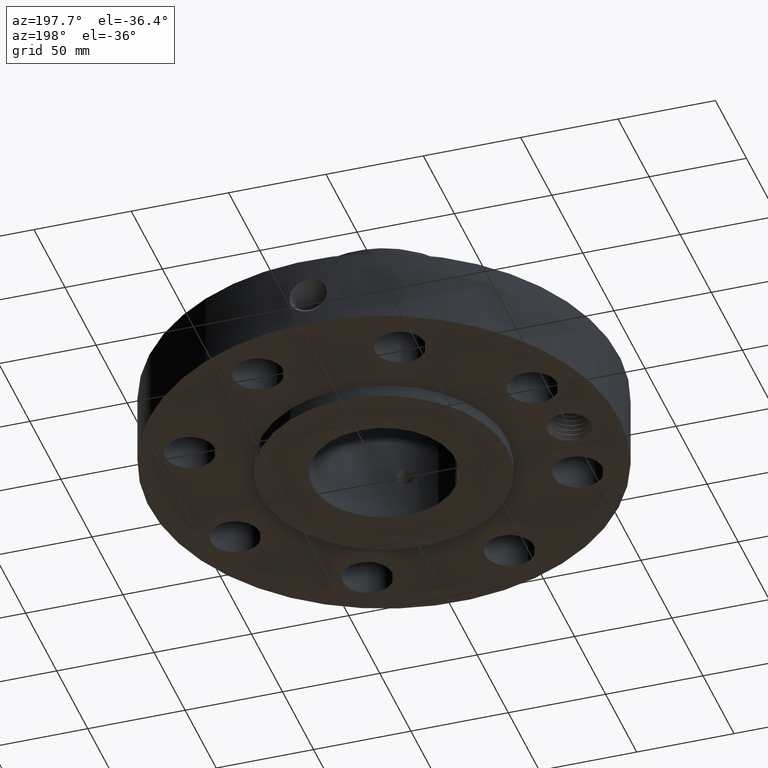
[diagram: clean part render]
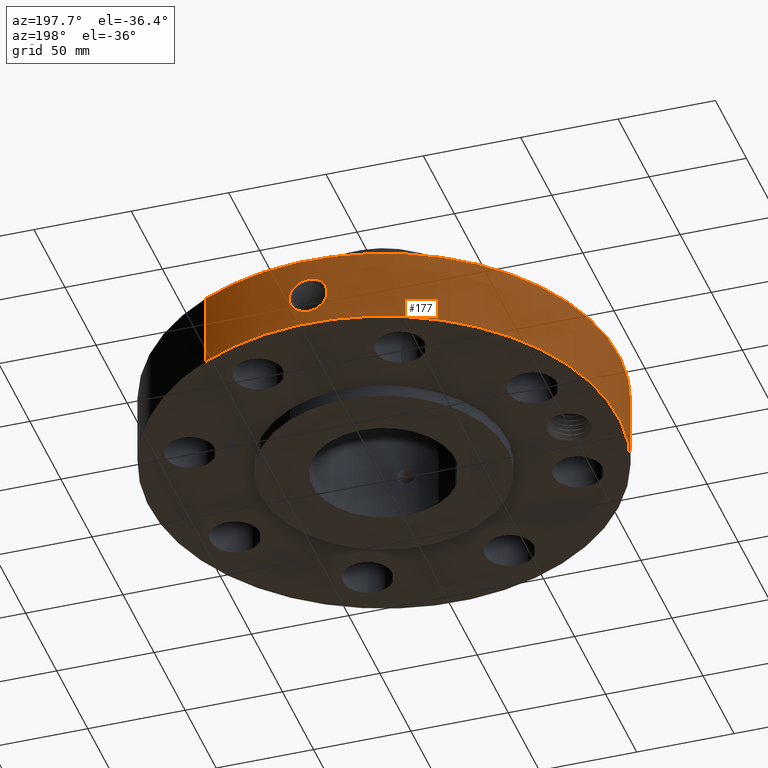
[diagram: same view with one face highlighted and labeled with its STEP entity id]
A machine part, auxiliary view. The second image highlights one B-rep face of the part: STEP entity #177.
In plain terms, the highlighted cylindrical surface (partial cylindrical patch) has radius 120.65 mm, axis along (0, 0, -1).
Its self-contained STEP definition (entity closure, byte-faithful):
#38=AXIS2_PLACEMENT_3D('Cylinder Axis2P3D',#35,#36,#37) ;
#42=AXIS2_PLACEMENT_3D('Circle Axis2P3D',#40,#41,$) ;
#58=AXIS2_PLACEMENT_3D('Circle Axis2P3D',#56,#57,$) ;
#35=CARTESIAN_POINT('Axis2P3D Location',(0.,0.,2.12500000001)) ;
#40=CARTESIAN_POINT('Axis2P3D Location',(0.,0.,0.250000000001)) ;
#44=CARTESIAN_POINT('Vertex',(-2.27727130838,-4.168517169,0.250000000001)) ;
#46=CARTESIAN_POINT('Vertex',(2.27727130838,4.168517169,0.250000000001)) ;
#49=CARTESIAN_POINT('Line Origine',(-2.27727130838,-4.168517169,1.)) ;
#53=CARTESIAN_POINT('Vertex',(-2.27727130838,-4.168517169,1.75000000001)) ;
#56=CARTESIAN_POINT('Axis2P3D Location',(0.,0.,1.75000000001)) ;
#60=CARTESIAN_POINT('Vertex',(2.27727130838,4.168517169,1.75000000001)) ;
#63=CARTESIAN_POINT('Line Origine',(2.27727130838,4.168517169,1.)) ;
#75=CARTESIAN_POINT('Control Point',(-0.0664443336882,4.74953525629,1.28781472966)) ;
#76=CARTESIAN_POINT('Control Point',(-0.0447973834791,4.74983808953,1.29195972283)) ;
#77=CARTESIAN_POINT('Control Point',(-0.0227596203804,4.74999661825,1.29407372225)) ;
#78=CARTESIAN_POINT('Control Point',(-0.000717080986339,4.74999994589,1.29411849685)) ;
#79=CARTESIAN_POINT('Vertex',(-0.0664188696294,4.74953588304,1.28781991618)) ;
#81=CARTESIAN_POINT('Vertex',(-0.000716859021627,4.74999994592,1.29411850704)) ;
#85=CARTESIAN_POINT('Control Point',(-0.0664187407928,4.74953561425,1.28781927448)) ;
#86=CARTESIAN_POINT('Control Point',(-0.102753721001,4.74902749644,1.28201870457)) ;
#87=CARTESIAN_POINT('Control Point',(-0.138115211601,4.74810201592,1.26977317773)) ;
#88=CARTESIAN_POINT('Control Point',(-0.170475904125,4.74693985282,1.25208714514)) ;
#89=CARTESIAN_POINT('Vertex',(-0.170475904125,4.74693985282,1.25208714514)) ;
#93=CARTESIAN_POINT('Control Point',(-0.0289717654606,4.74991164518,0.53104117424)) ;
#94=CARTESIAN_POINT('Control Point',(-0.0747966531428,4.74963213937,0.536930034353)) ;
#95=CARTESIAN_POINT('Control Point',(-0.119477769901,4.74880696846,0.550185753379)) ;
#96=CARTESIAN_POINT('Control Point',(-0.161312068973,4.74750063069,0.570440242412)) ;
#97=CARTESIAN_POINT('Control Point',(-0.245546224565,4.74402236715,0.628559076299)) ;
#98=CARTESIAN_POINT('Control Point',(-0.306057140322,4.74027319235,0.70960776439)) ;
#99=CARTESIAN_POINT('Control Point',(-0.330993871937,4.73849840088,0.759101526863)) ;
#100=CARTESIAN_POINT('Control Point',(-0.35845056759,4.73646747946,0.847415945733)) ;
#101=CARTESIAN_POINT('Control Point',(-0.360779964708,4.73627580375,0.938205105114)) ;
#102=CARTESIAN_POINT('Control Point',(-0.35751579808,4.73652939594,0.975158290126)) ;
#103=CARTESIAN_POINT('Control Point',(-0.339028118465,4.73793770505,1.06509307514)) ;
#104=CARTESIAN_POINT('Control Point',(-0.295443998867,4.74092283743,1.14643073314)) ;
#105=CARTESIAN_POINT('Control Point',(-0.260804026794,4.74309248769,1.19000963135)) ;
#106=CARTESIAN_POINT('Control Point',(-0.218315242628,4.7452218082,1.22594159398)) ;
#107=CARTESIAN_POINT('Control Point',(-0.170475904125,4.74693985282,1.25208714514)) ;
#108=CARTESIAN_POINT('Vertex',(-0.0289717654606,4.74991164518,0.53104117424)) ;
#112=CARTESIAN_POINT('Control Point',(-0.0289717654606,4.74991164518,0.53104117424)) ;
#113=CARTESIAN_POINT('Control Point',(-0.0193073849474,4.74997059241,0.530854119281)) ;
#114=CARTESIAN_POINT('Control Point',(-0.00964169540521,4.75000000556,0.530965378902)) ;
#115=CARTESIAN_POINT('Control Point',(2.72878353977E-006,4.75000000002,0.531374667805)) ;
#116=CARTESIAN_POINT('Vertex',(2.72878353782E-006,4.75000000002,0.531374667805)) ;
#120=CARTESIAN_POINT('Control Point',(0.194608877525,4.7460117346,0.583778592451)) ;
#121=CARTESIAN_POINT('Control Point',(0.134839366285,4.74846256661,0.552003246565)) ;
#122=CARTESIAN_POINT('Control Point',(0.0678388662237,4.74999996105,0.534253489827)) ;
#123=CARTESIAN_POINT('Control Point',(2.72878353977E-006,4.75000000002,0.531374667805)) ;
#124=CARTESIAN_POINT('Vertex',(0.194608877525,4.7460117346,0.583778592451)) ;
#128=CARTESIAN_POINT('Control Point',(0.332827639994,4.73832520647,0.701219893118)) ;
#129=CARTESIAN_POINT('Control Point',(0.305364932817,4.74025423152,0.664558567279)) ;
#130=CARTESIAN_POINT('Control Point',(0.272251915485,4.74236913954,0.632218481093)) ;
#131=CARTESIAN_POINT('Control Point',(0.234901661666,4.74435954031,0.605199499463)) ;
#132=CARTESIAN_POINT('Control Point',(0.194608877525,4.7460117346,0.583778592451)) ;
#133=CARTESIAN_POINT('Vertex',(0.332827639994,4.73832520647,0.701219893118)) ;
#137=CARTESIAN_POINT('Control Point',(0.332827639994,4.73832520647,0.701219893118)) ;
#138=CARTESIAN_POINT('Control Point',(0.362191423096,4.73626264676,0.744057421667)) ;
#139=CARTESIAN_POINT('Control Point',(0.384606624186,4.73444241076,0.791551724289)) ;
#140=CARTESIAN_POINT('Control Point',(0.399485379708,4.73317703047,0.841804248168)) ;
#141=CARTESIAN_POINT('Control Point',(0.406764031121,4.73255142848,0.893249885444)) ;
#142=CARTESIAN_POINT('Vertex',(0.406764031121,4.73255142848,0.893249885444)) ;
#146=CARTESIAN_POINT('Control Point',(0.406764031121,4.73255142848,0.893249885444)) ;
#147=CARTESIAN_POINT('Control Point',(0.410937043431,4.73219275698,0.943590828611)) ;
#148=CARTESIAN_POINT('Control Point',(0.406199449956,4.73259532086,0.994560330824)) ;
#149=CARTESIAN_POINT('Control Point',(0.392245340188,4.73383204363,1.04389645054)) ;
#150=CARTESIAN_POINT('Control Point',(0.356408433093,4.73676757046,1.11810453389)) ;
#151=CARTESIAN_POINT('Control Point',(0.303355472262,4.74037517985,1.17883123609)) ;
#152=CARTESIAN_POINT('Control Point',(0.280572013148,4.74179821439,1.20005457041)) ;
#153=CARTESIAN_POINT('Control Point',(0.216669478448,4.74536023062,1.24871840008)) ;
#154=CARTESIAN_POINT('Control Point',(0.143130760669,4.7481822494,1.27972813256)) ;
#155=CARTESIAN_POINT('Control Point',(0.0957567995274,4.74940386749,1.29169900669)) ;
#156=CARTESIAN_POINT('Control Point',(0.0475901556869,4.75000025916,1.29648726642)) ;
#157=CARTESIAN_POINT('Control Point',(-2.58579355241E-005,4.74999999995,1.29415298437)) ;
#158=CARTESIAN_POINT('Vertex',(-2.5857935516E-005,4.74999999995,1.29415298437)) ;
#162=CARTESIAN_POINT('Control Point',(-0.000716859009901,4.74999994592,1.29411850702)) ;
#163=CARTESIAN_POINT('Control Point',(-0.000371381626736,4.74999999807,1.29413604576)) ;
#164=CARTESIAN_POINT('Control Point',(-2.58579432267E-005,4.74999999995,1.29415298437)) ;
#36=DIRECTION('Axis2P3D Direction',(0.,0.,-0.0393700787402)) ;
#37=DIRECTION('Axis2P3D XDirection',(0.0188750212049,0.0345504945626,0.)) ;
#41=DIRECTION('Axis2P3D Direction',(0.,0.,-0.0393700787402)) ;
#50=DIRECTION('Vector Direction',(0.,0.,-0.0393700787402)) ;
#57=DIRECTION('Axis2P3D Direction',(0.,0.,-0.0393700787402)) ;
#64=DIRECTION('Vector Direction',(0.,0.,-0.0393700787402)) ;
#51=VECTOR('Line Direction',#50,0.0393700787402) ;
#65=VECTOR('Line Direction',#64,0.0393700787402) ;
#69=ORIENTED_EDGE('',*,*,#48,.F.) ;
#70=ORIENTED_EDGE('',*,*,#55,.T.) ;
#71=ORIENTED_EDGE('',*,*,#62,.T.) ;
#72=ORIENTED_EDGE('',*,*,#67,.F.) ;
#167=ORIENTED_EDGE('',*,*,#83,.F.) ;
#168=ORIENTED_EDGE('',*,*,#91,.T.) ;
#169=ORIENTED_EDGE('',*,*,#110,.F.) ;
#170=ORIENTED_EDGE('',*,*,#118,.T.) ;
#171=ORIENTED_EDGE('',*,*,#126,.F.) ;
#172=ORIENTED_EDGE('',*,*,#135,.F.) ;
#173=ORIENTED_EDGE('',*,*,#144,.T.) ;
#174=ORIENTED_EDGE('',*,*,#160,.T.) ;
#175=ORIENTED_EDGE('',*,*,#165,.F.) ;
#176=FACE_BOUND('',#166,.T.) ;
#177=ADVANCED_FACE('PartBody',(#73,#176),#39,.T.) ;
#74=B_SPLINE_CURVE_WITH_KNOTS('',3,(#75,#76,#77,#78),.UNSPECIFIED.,.F.,.U.,(4,4),(4.07664135905,6.52206473112),.UNSPECIFIED.) ;
#84=B_SPLINE_CURVE_WITH_KNOTS('',3,(#85,#86,#87,#88),.UNSPECIFIED.,.F.,.U.,(4,4),(0.,4.13427651569),.UNSPECIFIED.) ;
#92=B_SPLINE_CURVE_WITH_KNOTS('',5,(#93,#94,#95,#96,#97,#98,#99,#100,#101,#102,#103,#104,#105,#106,#107),.UNSPECIFIED.,.F.,.U.,(6,3,3,3,6),(0.,8.03013530551,17.9302111432,24.7841526621,34.9704332307),.UNSPECIFIED.) ;
#111=B_SPLINE_CURVE_WITH_KNOTS('',3,(#112,#113,#114,#115),.UNSPECIFIED.,.F.,.U.,(4,4),(0.,1.00795509622),.UNSPECIFIED.) ;
#119=B_SPLINE_CURVE_WITH_KNOTS('',3,(#120,#121,#122,#123),.UNSPECIFIED.,.F.,.U.,(4,4),(0.,7.08966954566),.UNSPECIFIED.) ;
#127=B_SPLINE_CURVE_WITH_KNOTS('',4,(#128,#129,#130,#131,#132),.UNSPECIFIED.,.F.,.U.,(5,5),(0.,6.37253605662),.UNSPECIFIED.) ;
#136=B_SPLINE_CURVE_WITH_KNOTS('',4,(#137,#138,#139,#140,#141),.UNSPECIFIED.,.F.,.U.,(5,5),(0.,7.22451487696),.UNSPECIFIED.) ;
#145=B_SPLINE_CURVE_WITH_KNOTS('',5,(#146,#147,#148,#149,#150,#151,#152,#153,#154,#155,#156,#157),.UNSPECIFIED.,.F.,.U.,(6,3,3,6),(0.,8.77965380462,14.3423432714,23.2427618077),.UNSPECIFIED.) ;
#161=B_SPLINE_CURVE_WITH_KNOTS('',2,(#162,#163,#164),.UNSPECIFIED.,.F.,.U.,(3,3),(1.10272046804,1.12855468109),.UNSPECIFIED.) ;
#43=CIRCLE('generated circle',#42,4.75000000002) ;
#59=CIRCLE('generated circle',#58,4.75000000002) ;
#39=CYLINDRICAL_SURFACE('generated cylinder',#38,4.75000000002) ;
#48=EDGE_CURVE('',#45,#47,#43,.T.) ;
#55=EDGE_CURVE('',#45,#54,#52,.F.) ;
#62=EDGE_CURVE('',#54,#61,#59,.T.) ;
#67=EDGE_CURVE('',#47,#61,#66,.F.) ;
#83=EDGE_CURVE('',#80,#82,#74,.T.) ;
#91=EDGE_CURVE('',#80,#90,#84,.T.) ;
#110=EDGE_CURVE('',#109,#90,#92,.T.) ;
#118=EDGE_CURVE('',#109,#117,#111,.T.) ;
#126=EDGE_CURVE('',#125,#117,#119,.T.) ;
#135=EDGE_CURVE('',#134,#125,#127,.T.) ;
#144=EDGE_CURVE('',#134,#143,#136,.T.) ;
#160=EDGE_CURVE('',#143,#159,#145,.T.) ;
#165=EDGE_CURVE('',#82,#159,#161,.T.) ;
#68=EDGE_LOOP('',(#69,#70,#71,#72)) ;
#166=EDGE_LOOP('',(#167,#168,#169,#170,#171,#172,#173,#174,#175)) ;
#73=FACE_OUTER_BOUND('',#68,.T.) ;
#52=LINE('Line',#49,#51) ;
#66=LINE('Line',#63,#65) ;
#45=VERTEX_POINT('',#44) ;
#47=VERTEX_POINT('',#46) ;
#54=VERTEX_POINT('',#53) ;
#61=VERTEX_POINT('',#60) ;
#80=VERTEX_POINT('',#79) ;
#82=VERTEX_POINT('',#81) ;
#90=VERTEX_POINT('',#89) ;
#109=VERTEX_POINT('',#108) ;
#117=VERTEX_POINT('',#116) ;
#125=VERTEX_POINT('',#124) ;
#134=VERTEX_POINT('',#133) ;
#143=VERTEX_POINT('',#142) ;
#159=VERTEX_POINT('',#158) ;